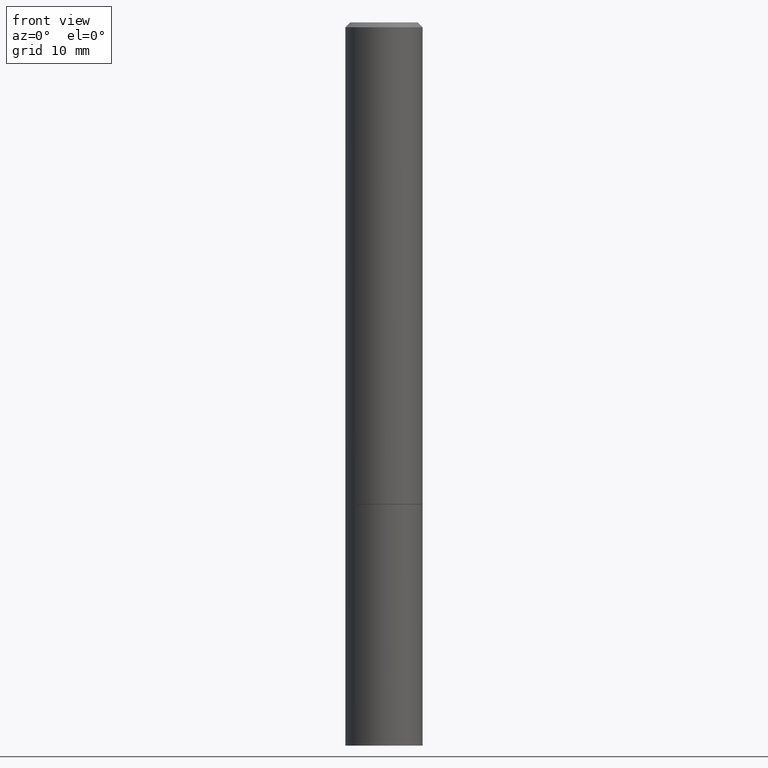
[diagram: clean part render]
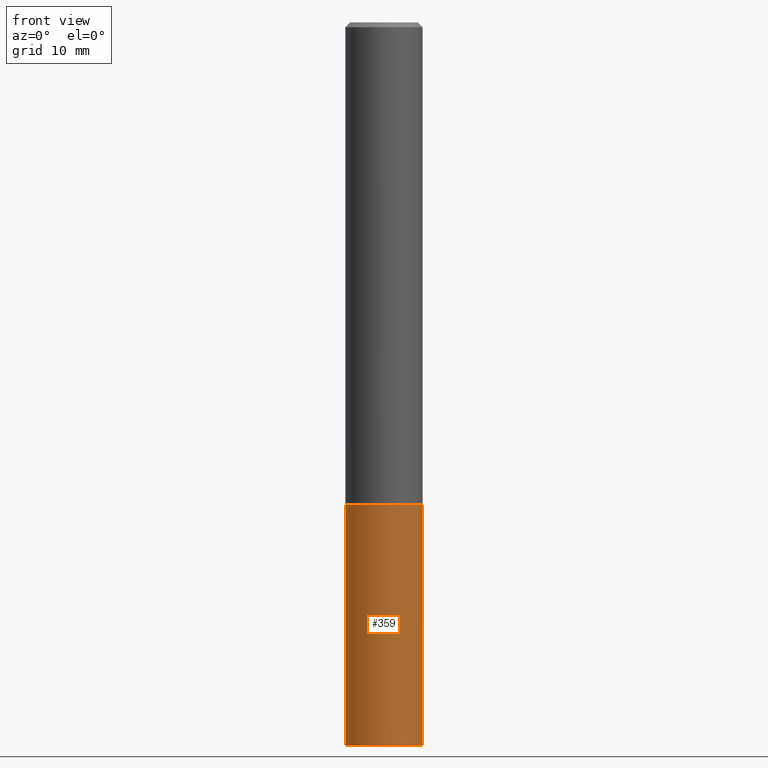
[diagram: same view with one face highlighted and labeled with its STEP entity id]
A machine part, front view. The second image highlights one B-rep face of the part: STEP entity #359.
In plain terms, the highlighted cylindrical surface (partial cylindrical patch) has radius 4.0005 mm, axis along (-0, 0, 1).
Its self-contained STEP definition (entity closure, byte-faithful):
#4 = LINE ( 'NONE', #183, #116 ) ;
#24 = LINE ( 'NONE', #355, #223 ) ;
#27 = CIRCLE ( 'NONE', #242, 0.1575000000000000011 ) ;
#29 = ORIENTED_EDGE ( 'NONE', *, *, #342, .T. ) ;
#31 = EDGE_CURVE ( 'NONE', #191, #97, #24, .T. ) ;
#44 = DIRECTION ( 'NONE',  ( -2.445468806185136597E-29, 3.491481338843145583E-15, 1.000000000000000000 ) ) ;
#82 = CIRCLE ( 'NONE', #339, 0.1575000000000000011 ) ;
#85 = CARTESIAN_POINT ( 'NONE',  ( -0.1575000000000000011, -7.472208747602227514E-15, -1.968499999999999694 ) ) ;
#91 = CYLINDRICAL_SURFACE ( 'NONE', #364, 0.1575000000000000011 ) ;
#94 = CARTESIAN_POINT ( 'NONE',  ( 0.000000000000000000, 0.000000000000000000, 0.000000000000000000 ) ) ;
#97 = VERTEX_POINT ( 'NONE', #85 ) ;
#100 = ORIENTED_EDGE ( 'NONE', *, *, #350, .F. ) ;
#116 = VECTOR ( 'NONE', #341, 39.37007874015748143 ) ;
#121 = EDGE_CURVE ( 'NONE', #313, #320, #4, .T. ) ;
#124 = ORIENTED_EDGE ( 'NONE', *, *, #31, .F. ) ;
#132 = CARTESIAN_POINT ( 'NONE',  ( 0.1575000000000000011, -1.140946271907162522E-14, -2.952799999999999869 ) ) ;
#137 = DIRECTION ( 'NONE',  ( -2.445468806185136877E-29, 3.491481338843145188E-15, 1.000000000000000000 ) ) ;
#161 = DIRECTION ( 'NONE',  ( -2.445468806185136597E-29, 3.491481338843145583E-15, 1.000000000000000000 ) ) ;
#170 = DIRECTION ( 'NONE',  ( 1.000000000000000000, -6.982962677686268288E-15, 0.000000000000000000 ) ) ;
#183 = CARTESIAN_POINT ( 'NONE',  ( 0.1575000000000000011, -1.099816621735586889E-15, 7.679978421878598033E-30 ) ) ;
#191 = VERTEX_POINT ( 'NONE', #205 ) ;
#193 = DIRECTION ( 'NONE',  ( 1.000000000000000000, -6.982962677686261977E-15, 0.000000000000000000 ) ) ;
#205 = CARTESIAN_POINT ( 'NONE',  ( -0.1575000000000000011, -7.472208747602227514E-15, -2.952799999999999869 ) ) ;
#210 = DIRECTION ( 'NONE',  ( 1.000000000000000000, -6.982962677686265922E-15, 4.876176775795935232E-29 ) ) ;
#223 = VECTOR ( 'NONE', #137, 39.37007874015748143 ) ;
#226 = ORIENTED_EDGE ( 'NONE', *, *, #121, .T. ) ;
#239 = CARTESIAN_POINT ( 'NONE',  ( 4.813905344975440714E-29, -6.872981015512730918E-15, -1.968499999999999694 ) ) ;
#242 = AXIS2_PLACEMENT_3D ( 'NONE', #239, #44, #170 ) ;
#243 = DIRECTION ( 'NONE',  ( -2.445468806185136597E-29, 3.491481338843145583E-15, 1.000000000000000000 ) ) ;
#245 = CARTESIAN_POINT ( 'NONE',  ( 7.220980290903470182E-29, -1.030964609733603853E-14, -2.952799999999999869 ) ) ;
#247 = CARTESIAN_POINT ( 'NONE',  ( 0.1575000000000000011, -7.972797637248318399E-15, -1.968499999999999694 ) ) ;
#299 = EDGE_LOOP ( 'NONE', ( #124, #29, #226, #100 ) ) ;
#313 = VERTEX_POINT ( 'NONE', #132 ) ;
#320 = VERTEX_POINT ( 'NONE', #247 ) ;
#339 = AXIS2_PLACEMENT_3D ( 'NONE', #245, #243, #193 ) ;
#341 = DIRECTION ( 'NONE',  ( -2.445468806185136877E-29, 3.491481338843145188E-15, 1.000000000000000000 ) ) ;
#342 = EDGE_CURVE ( 'NONE', #191, #313, #82, .T. ) ;
#350 = EDGE_CURVE ( 'NONE', #97, #320, #27, .T. ) ;
#351 = FACE_OUTER_BOUND ( 'NONE', #299, .T. ) ;
#355 = CARTESIAN_POINT ( 'NONE',  ( -0.1575000000000000011, 1.119104808822157801E-15, -7.747322767151475583E-30 ) ) ;
#359 = ADVANCED_FACE ( 'NONE', ( #351 ), #91, .T. ) ;
#364 = AXIS2_PLACEMENT_3D ( 'NONE', #94, #161, #210 ) ;